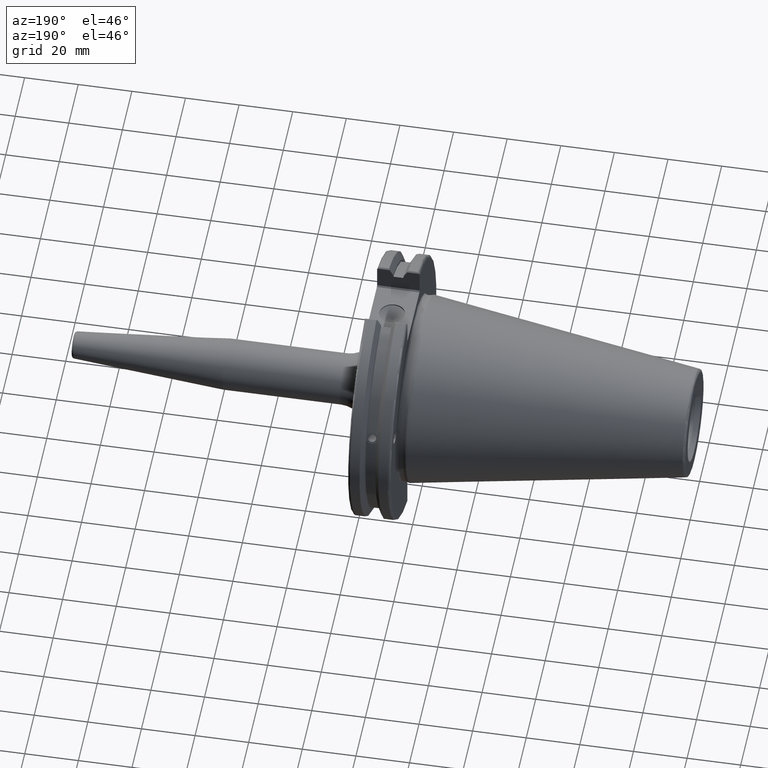
[diagram: clean part render]
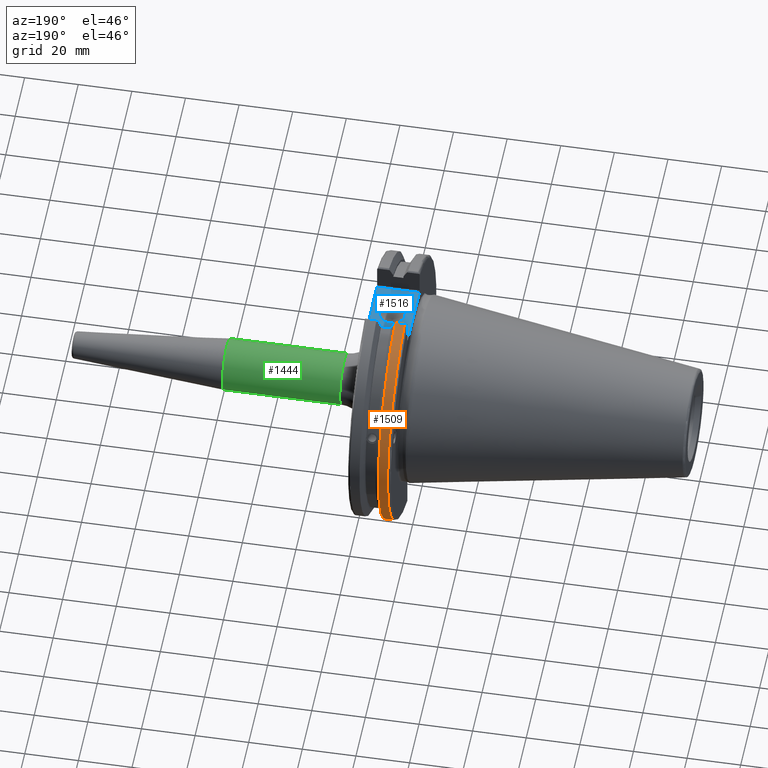
[diagram: same view with three faces highlighted in distinct colors, each labeled with its STEP entity id]
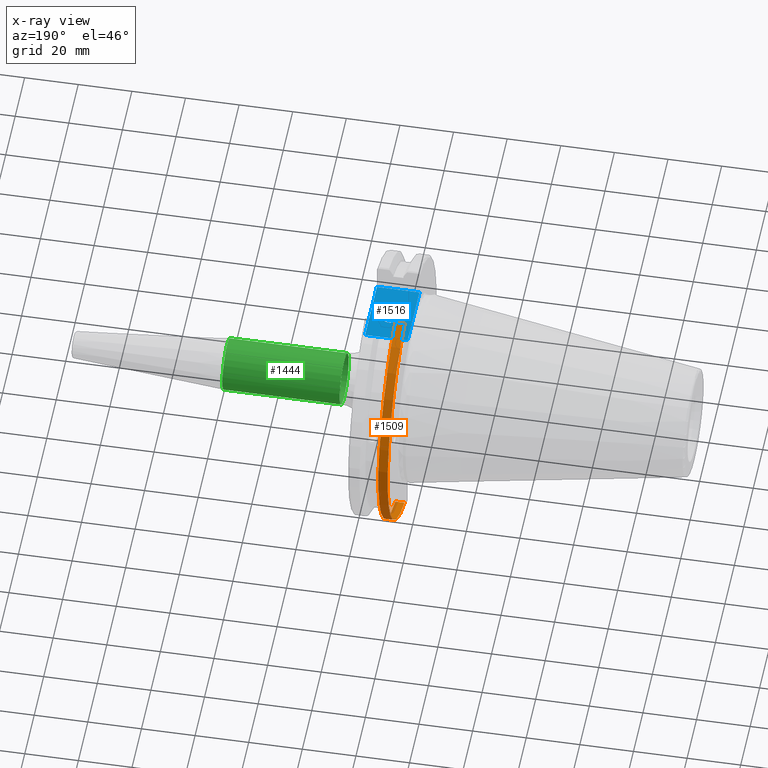
[diagram: x-ray of the same camera — body ghosted, the three highlighted faces saturated]
A machine part, auxiliary view with three faces highlighted in distinct colors.
The next image is the same camera in x-ray (body ghosted, the three faces saturated) — at least one of them is partly hidden behind the body in this view.
Their STEP definitions:

[orange] entity #1509 — the highlighted cylindrical surface (partial cylindrical patch) has radius 49.2125 mm, axis along (1, 0, 0).
#93=CYLINDRICAL_SURFACE('',#1682,49.2125);
#224=LINE('',#2963,#318);
#239=LINE('',#3016,#333);
#318=VECTOR('',#2007,10.);
#333=VECTOR('',#2066,10.);
#423=FACE_OUTER_BOUND('',#524,.T.);
#524=EDGE_LOOP('',(#1361,#1362,#1363,#1364));
#576=CIRCLE('',#1613,49.2125);
#597=CIRCLE('',#1658,49.2125);
#693=VERTEX_POINT('',#2688);
#694=VERTEX_POINT('',#2692);
#746=VERTEX_POINT('',#2937);
#747=VERTEX_POINT('',#2946);
#865=EDGE_CURVE('',#693,#694,#576,.T.);
#943=EDGE_CURVE('',#746,#747,#597,.T.);
#946=EDGE_CURVE('',#747,#693,#224,.T.);
#970=EDGE_CURVE('',#694,#746,#239,.T.);
#1361=ORIENTED_EDGE('',*,*,#943,.F.);
#1362=ORIENTED_EDGE('',*,*,#970,.F.);
#1363=ORIENTED_EDGE('',*,*,#865,.F.);
#1364=ORIENTED_EDGE('',*,*,#946,.F.);
#1509=ADVANCED_FACE('',(#423),#93,.T.);
#1613=AXIS2_PLACEMENT_3D('',#2693,#1879,#1880);
#1658=AXIS2_PLACEMENT_3D('',#2947,#2003,#2004);
#1682=AXIS2_PLACEMENT_3D('',#3017,#2067,#2068);
#1879=DIRECTION('center_axis',(1.,0.,0.));
#1880=DIRECTION('ref_axis',(0.,0.,-1.));
#2003=DIRECTION('center_axis',(-1.,0.,0.));
#2004=DIRECTION('ref_axis',(0.,1.,-6.12323399573677E-17));
#2007=DIRECTION('',(1.,0.,0.));
#2066=DIRECTION('',(-1.,0.,0.));
#2067=DIRECTION('center_axis',(1.,0.,0.));
#2068=DIRECTION('ref_axis',(0.,1.,0.));
#2688=CARTESIAN_POINT('',(7.60799096595127,13.4317035994433,-47.3440544806494));
#2692=CARTESIAN_POINT('',(7.60799096595127,13.4317035994433,47.3440544806494));
#2693=CARTESIAN_POINT('Origin',(7.60799096595127,0.,0.));
#2937=CARTESIAN_POINT('',(4.175,13.4317035994433,47.3440544806494));
#2946=CARTESIAN_POINT('',(4.175,13.4317035994433,-47.3440544806494));
#2947=CARTESIAN_POINT('Origin',(4.175,0.,0.));
#2963=CARTESIAN_POINT('',(5.39149548297563,13.4317035994433,-47.3440544806494));
#3016=CARTESIAN_POINT('',(5.39149548297563,13.4317035994433,47.3440544806494));
#3017=CARTESIAN_POINT('Origin',(5.39149548297563,0.,0.));

[blue] entity #1516 — the highlighted planar face has unit normal (0, 0, 1).
#114=FACE_BOUND('',#532,.T.);
#147=PLANE('',#1694);
#155=LINE('',#2159,#249);
#200=LINE('',#2756,#294);
#228=LINE('',#2985,#322);
#230=LINE('',#2988,#324);
#249=VECTOR('',#1748,10.);
#294=VECTOR('',#1943,10.);
#322=VECTOR('',#2037,10.);
#324=VECTOR('',#2041,10.);
#430=FACE_OUTER_BOUND('',#531,.T.);
#531=EDGE_LOOP('',(#1393,#1394,#1395,#1396));
#532=EDGE_LOOP('',(#1397));
#606=CIRCLE('',#1686,4.7625);
#626=VERTEX_POINT('',#2156);
#627=VERTEX_POINT('',#2158);
#713=VERTEX_POINT('',#2753);
#714=VERTEX_POINT('',#2755);
#760=VERTEX_POINT('',#3024);
#778=EDGE_CURVE('',#626,#627,#155,.T.);
#893=EDGE_CURVE('',#713,#714,#200,.T.);
#956=EDGE_CURVE('',#627,#713,#228,.T.);
#958=EDGE_CURVE('',#714,#626,#230,.T.);
#973=EDGE_CURVE('',#760,#760,#606,.T.);
#1393=ORIENTED_EDGE('',*,*,#956,.F.);
#1394=ORIENTED_EDGE('',*,*,#778,.F.);
#1395=ORIENTED_EDGE('',*,*,#958,.F.);
#1396=ORIENTED_EDGE('',*,*,#893,.F.);
#1397=ORIENTED_EDGE('',*,*,#973,.T.);
#1516=ADVANCED_FACE('',(#430,#114),#147,.T.);
#1686=AXIS2_PLACEMENT_3D('',#3025,#2076,#2077);
#1694=AXIS2_PLACEMENT_3D('',#3034,#2093,#2094);
#1748=DIRECTION('',(0.,-1.,0.));
#1943=DIRECTION('',(0.,1.,0.));
#2037=DIRECTION('',(-1.,1.31581988103722E-16,0.));
#2041=DIRECTION('',(1.,0.,0.));
#2076=DIRECTION('center_axis',(0.,0.,-1.));
#2077=DIRECTION('ref_axis',(1.,0.,0.));
#2093=DIRECTION('center_axis',(0.,0.,1.));
#2094=DIRECTION('ref_axis',(1.,0.,0.));
#2156=CARTESIAN_POINT('',(19.05,12.45,37.719));
#2158=CARTESIAN_POINT('',(19.05,-12.45,37.719));
#2159=CARTESIAN_POINT('',(19.05,0.,37.719));
#2753=CARTESIAN_POINT('',(3.175,-12.45,37.719));
#2755=CARTESIAN_POINT('',(3.175,12.45,37.719));
#2756=CARTESIAN_POINT('',(3.175,24.60625,37.719));
#2985=CARTESIAN_POINT('',(10.63125,-12.45,37.719));
#2988=CARTESIAN_POINT('',(19.06875,12.45,37.719));
#3024=CARTESIAN_POINT('',(6.3716,-5.83238038093927E-16,37.719));
#3025=CARTESIAN_POINT('Origin',(11.1341,0.,37.719));
#3034=CARTESIAN_POINT('Origin',(18.0875,0.,37.719));

[green] entity #1444 — the highlighted cylindrical surface (bore or boss wall) has radius 9.5 mm, axis along (1, 0, 0).
#71=CYLINDRICAL_SURFACE('',#1562,9.5);
#152=LINE('',#2149,#246);
#246=VECTOR('',#1741,9.5);
#358=FACE_OUTER_BOUND('',#444,.T.);
#444=EDGE_LOOP('',(#1003,#1004,#1005,#1006,#1007));
#546=CIRCLE('',#1554,9.5);
#548=CIRCLE('',#1558,9.5);
#551=CIRCLE('',#1561,9.5);
#618=VERTEX_POINT('',#2134);
#620=VERTEX_POINT('',#2141);
#621=VERTEX_POINT('',#2142);
#768=EDGE_CURVE('',#618,#618,#546,.T.);
#770=EDGE_CURVE('',#620,#621,#548,.T.);
#773=EDGE_CURVE('',#621,#620,#551,.T.);
#774=EDGE_CURVE('',#618,#620,#152,.T.);
#1003=ORIENTED_EDGE('',*,*,#768,.F.);
#1004=ORIENTED_EDGE('',*,*,#774,.T.);
#1005=ORIENTED_EDGE('',*,*,#773,.F.);
#1006=ORIENTED_EDGE('',*,*,#770,.F.);
#1007=ORIENTED_EDGE('',*,*,#774,.F.);
#1444=ADVANCED_FACE('',(#358),#71,.T.);
#1554=AXIS2_PLACEMENT_3D('',#2136,#1723,#1724);
#1558=AXIS2_PLACEMENT_3D('',#2143,#1731,#1732);
#1561=AXIS2_PLACEMENT_3D('',#2147,#1737,#1738);
#1562=AXIS2_PLACEMENT_3D('',#2148,#1739,#1740);
#1723=DIRECTION('center_axis',(1.,0.,0.));
#1724=DIRECTION('ref_axis',(0.,0.,-1.));
#1731=DIRECTION('center_axis',(-1.,0.,0.));
#1732=DIRECTION('ref_axis',(0.,-1.,-1.22464679914735E-16));
#1737=DIRECTION('center_axis',(-1.,0.,0.));
#1738=DIRECTION('ref_axis',(0.,-1.,-1.22464679914735E-16));
#1739=DIRECTION('center_axis',(1.,0.,0.));
#1740=DIRECTION('ref_axis',(0.,1.,0.));
#1741=DIRECTION('',(-1.,0.,0.));
#2134=CARTESIAN_POINT('',(72.8220786872138,-9.5,-1.16341445918999E-15));
#2136=CARTESIAN_POINT('Origin',(72.8220786872138,0.,0.));
#2141=CARTESIAN_POINT('',(29.05,-9.5,-1.16341445918999E-15));
#2142=CARTESIAN_POINT('',(29.05,-1.16341445918999E-15,-9.5));
#2143=CARTESIAN_POINT('Origin',(29.05,0.,0.));
#2147=CARTESIAN_POINT('Origin',(29.05,0.,0.));
#2148=CARTESIAN_POINT('Origin',(45.9360393436069,0.,0.));
#2149=CARTESIAN_POINT('',(45.9360393436069,-9.5,-1.16341445918999E-15));